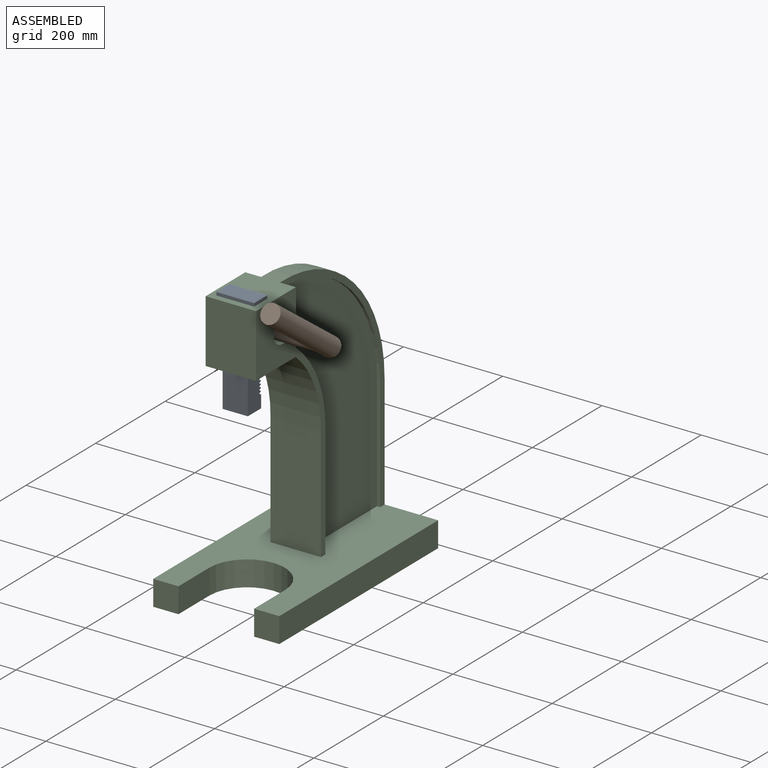
[diagram: assembled view]
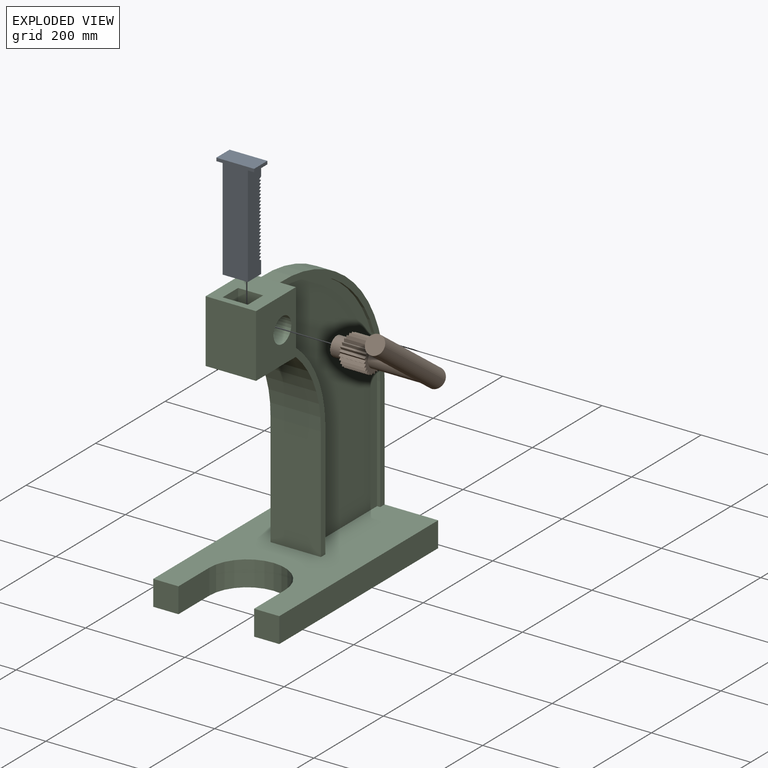
[diagram: exploded view]
GUIDED TOUR — MATED ASSEMBLY (Onshape document 791e0c920d4a2f3be3156192, AutoMate assembly 791e0c920d4a2f3be3156192_3b25f23ee723998e74377184_8163ef5310a8ae61655949e4_default)

This assembly has 3 components, labeled P0..P2 below (a component is one placed occurrence of a part; the same part can appear more than once), held together by 2 mates. A mate is a constraint between two components; its type names the relative motion it leaves free:
  REVOLUTE — leaves rotation about the listed axis free (a hinge),
  SLIDER — leaves translation along the listed axis free.
Axis/direction vectors are unit vectors and 'through' points are millimeter coordinates, both in the assembly's world frame.

MATES
  1. REVOLUTE "Revolute 1": P1 <-> P2, axis (-1.000, 0.000, 0.000) through (-264.10, 27.50, 613.15) mm
  2. SLIDER "Slider 1": P2 <-> P0, axis (0.000, 0.000, 1.000) through (-187.90, -36.00, 676.65) mm

ASSEMBLY ORDER
  1. P2 — the base component [order heuristic]
  2. P0 [order heuristic]
  3. P1 [order heuristic]
Order-tag legend:
  [order heuristic] — this assembly is geometrically interlocked (no collision-free removal order exists), so components are listed in mate-graph order; insertion feasibility is not verified.

Of the 3 components, 1 carries the full construction recipe — the FeatureScript program that regenerates the part's solid from scratch; the rest are supplied as boundary geometry only.
Each toured component is shown spotlighted twice — in the assembled view, then in the exploded view, where a leader line traces a displaced component back to its assembled socket (saturated green if recipe-attached, orange if geometry-only; every other component desaturated gray) — followed by its recipe or geometry summary and the mates that hold it.
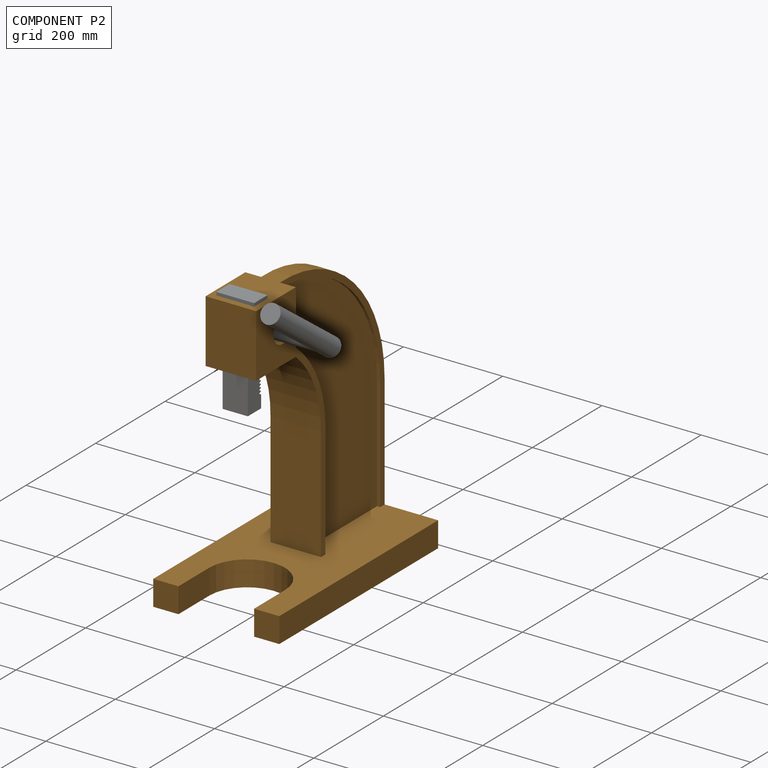
[diagram: component P2 — assembled]
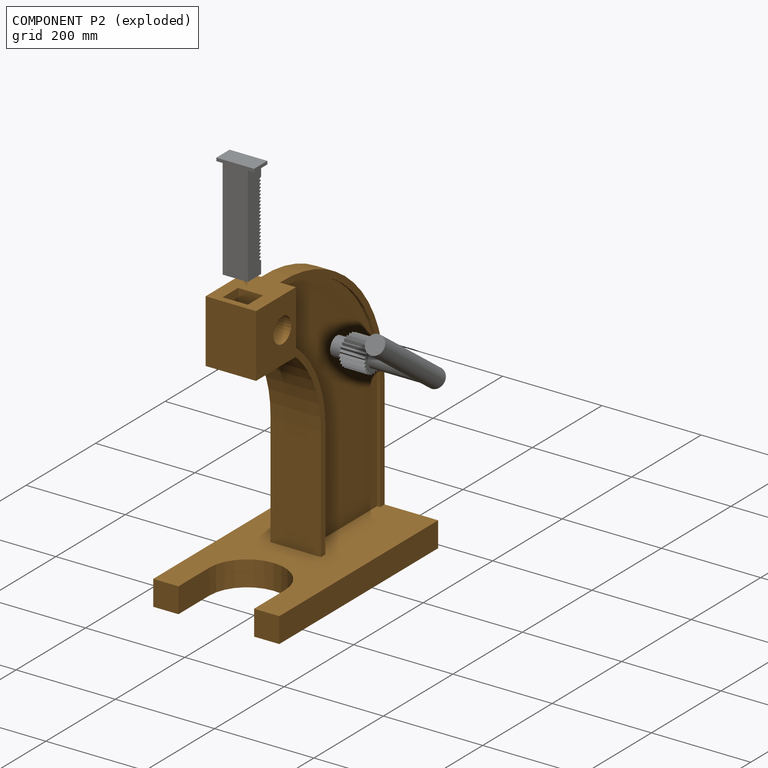
[diagram: component P2 — exploded]
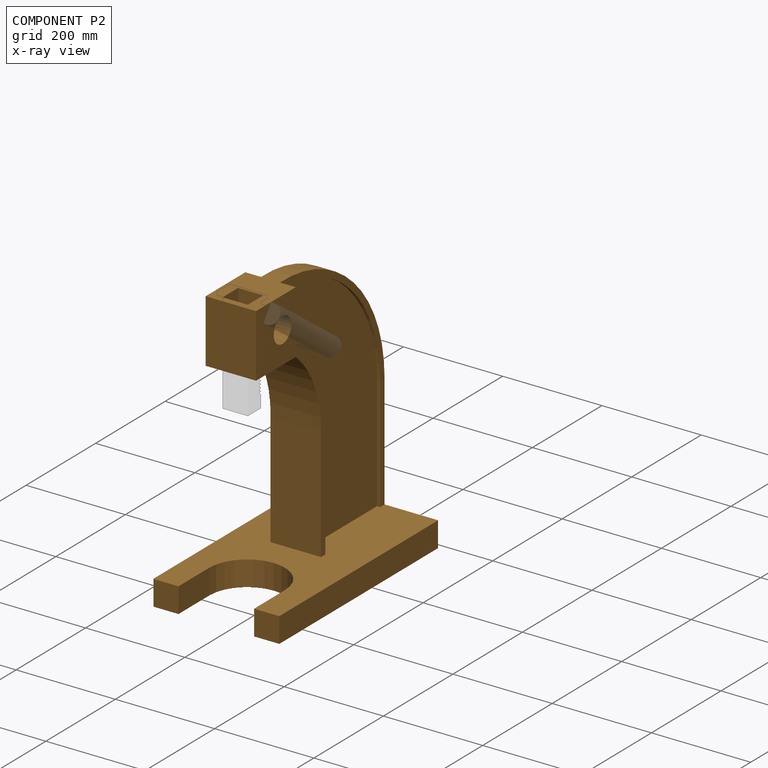
[diagram: component P2 — x-ray view]
COMPONENT P2 — geometry summary (no construction recipe available for this part):
  bounding box: 570.1 x 457.2 x 254.0 mm
  B-rep topology: 1 solid, 38 faces, 218 edges
  volume: 9136530 mm^3 (14% of its bounding box)
  symmetry: mirror-symmetric across its x mid-plane
Held by: REVOLUTE mate "Revolute 1" to P1; SLIDER mate "Slider 1" to P0.
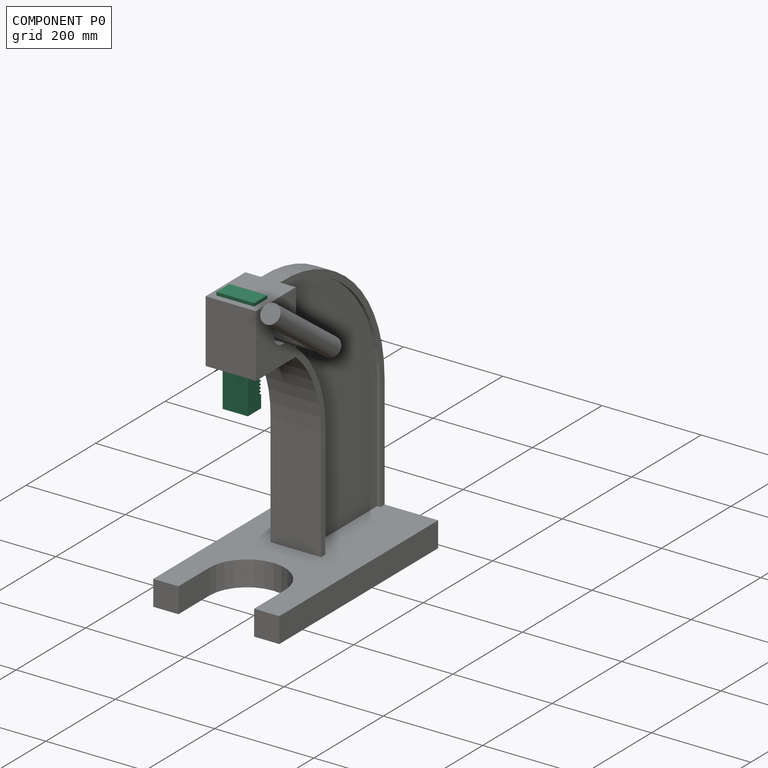
[diagram: component P0 — assembled]
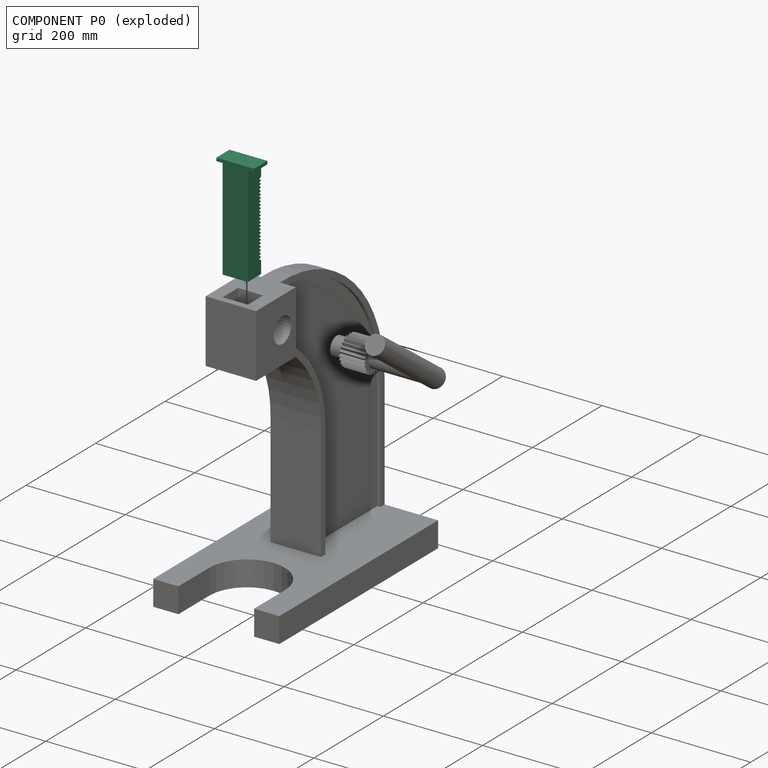
[diagram: component P0 — exploded]
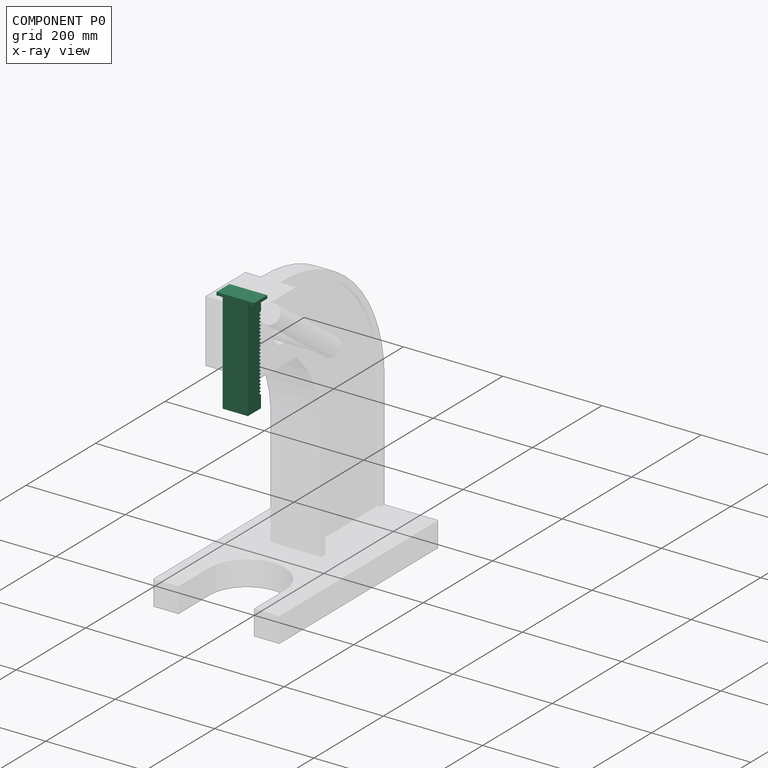
[diagram: component P0 — x-ray view]
COMPONENT P0 — recipe-attached (CADFS 00426102, mesh-verified: the recipe's output STEP matches this component's geometry to below the mesh-comparison resolution (tessellation chordal tolerance ~0.339 mm)).
Held by: SLIDER mate "Slider 1" to P2.
Construction recipe (FeatureScript — the CAD program that rebuilds this solid; sketch coordinates are in the units given by the * unit suffixes, e.g. mm):

FeatureScript 1511;
import(path : "onshape/std/geometry.fs", version : "1511.0");
import(path : "onshape/std/common.fs", version : "1511.0");
const mm = millimeter;
const VERTEX = EntityType.VERTEX;
const EDGE = EntityType.EDGE;
const FACE = EntityType.FACE;
const BODY = EntityType.BODY;
function v(x, y){return vector(x, y);}
function OD(order){return orderDisambiguation(order);}
function OSD(set){return originalSetDisambiguation(set);}
function TD(topology){return topologyDisambiguation(topology);}
function TDD(query){return trueDependencyDisambiguation(query);}
function sQuery(a, b, c) {return sketchEntityQuery(a, b, c);}

annotation { "Feature Type Name" : "Feature", "Feature Type Description" : "" }
export const myFeature = defineFeature(function(context is Context, id is Id, definition is map)
    precondition{}
    {
        {
            var Q0;
            Q0=qCreatedBy(makeId("Front.planeOp"),FACE);
            var sketch = newSketch(context, id + "F0", { "sketchPlane" : qUnion([Q0])});
            skLineSegment(sketch, "E0", {"start": v(-25.4, 203.2) * mm, "end": v(25.4, 203.2) * mm});
            skLineSegment(sketch, "E1", {"start": v(25.4, 203.2) * mm, "end": v(25.4, 0) * mm});
            skLineSegment(sketch, "E2", {"start": v(25.4, 0) * mm, "end": v(-25.4, 0) * mm});
            skLineSegment(sketch, "E3", {"start": v(-25.4, 0) * mm, "end": v(-25.4, 203.2) * mm});
            skPoint(sketch, "E4", {"position": v(0, 203.2) * mm});
            skLineSegment(sketch, "E5", {"start": v(-38.1, 209.55) * mm, "end": v(-38.1, 203.2) * mm});
            skLineSegment(sketch, "E6", {"start": v(-38.1, 203.2) * mm, "end": v(38.1, 203.2) * mm});
            skLineSegment(sketch, "E7", {"start": v(38.1, 203.2) * mm, "end": v(38.1, 209.55) * mm});
            skLineSegment(sketch, "E8", {"start": v(38.1, 209.55) * mm, "end": v(-38.1, 209.55) * mm});
            skSolve(sketch);
        }
        {
            var Q0;
            {var subQ4=sQuery(id+"F0.wireOp",EDGE,"E5");Q0=makeQuery(id+"F0.imprint","IMPRINT",FACE,{"disambiguationData":[TD([[makeQuery(id+"F0.imprint","IMPRINT",EDGE,{"derivedFrom":subQ4}),1.0]])]});}
            var Q1;
            {var subQ0=sQuery(id+"F0.wireOp",EDGE,"E1");Q1=makeQuery(id+"F0.imprint","IMPRINT",FACE,{"disambiguationData":[TD([[makeQuery(id+"F0.imprint","IMPRINT",EDGE,{"derivedFrom":subQ0}),-1.0]])]});}
            extrude(context, id + "F1", {"entities" : qUnion([Q0, Q1]), "endBound" : BoundingType.SYMMETRIC, "depth" : 38.1 * mm});
        }
        {
            var Q0;
            Q0=makeQuery(id+"F1.opExtrude","SWEPT_FACE",FACE,{"disambiguationData":[OSD([sQuery(id+"F0.wireOp",EDGE,"E1")])]});
            var sketch = newSketch(context, id + "F2", { "sketchPlane" : qUnion([Q0])});
            skLineSegment(sketch, "E9", {"start": v(19.05, 203.2) * mm, "end": v(19.05, 177.8) * mm, "construction": true});
            skLineSegment(sketch, "E10", {"start": v(19.05, 0) * mm, "end": v(19.05, 25.4) * mm, "construction": true});
            skLineSegment(sketch, "E11", {"start": v(19.05, 25.4) * mm, "end": v(-19.05, 25.4) * mm, "construction": true});
            skLineSegment(sketch, "E12", {"start": v(19.05, 177.8) * mm, "end": v(-19.05, 177.8) * mm, "construction": true});
            skLineSegment(sketch, "E13", {"start": v(19.05, 177.8) * mm, "end": v(13.55, 174.63) * mm});
            skLineSegment(sketch, "E14", {"start": v(13.55, 174.63) * mm, "end": v(19.05, 171.45) * mm});
            skLineSegment(sketch, "E15", {"start": v(19.05, 171.45) * mm, "end": v(19.05, 177.8) * mm});
            skLineSegment(sketch, "E16.0.1.0", {"start": v(13.55, 168.28) * mm, "end": v(19.05, 165.1) * mm});
            skLineSegment(sketch, "E16.0.1.1", {"start": v(19.05, 171.45) * mm, "end": v(13.55, 168.28) * mm});
            skLineSegment(sketch, "E16.0.1.2", {"start": v(19.05, 165.1) * mm, "end": v(19.05, 171.45) * mm});
            skLineSegment(sketch, "E16.0.2.0", {"start": v(13.55, 161.93) * mm, "end": v(19.05, 158.75) * mm});
            skLineSegment(sketch, "E16.0.2.1", {"start": v(19.05, 165.1) * mm, "end": v(13.55, 161.93) * mm});
            skLineSegment(sketch, "E16.0.2.2", {"start": v(19.05, 158.75) * mm, "end": v(19.05, 165.1) * mm});
            skLineSegment(sketch, "E16.0.3.0", {"start": v(13.55, 155.58) * mm, "end": v(19.05, 152.4) * mm});
            skLineSegment(sketch, "E16.0.3.1", {"start": v(19.05, 158.75) * mm, "end": v(13.55, 155.58) * mm});
            skLineSegment(sketch, "E16.0.3.2", {"start": v(19.05, 152.4) * mm, "end": v(19.05, 158.75) * mm});
            skLineSegment(sketch, "E16.0.4.0", {"start": v(13.55, 149.23) * mm, "end": v(19.05, 146.05) * mm});
            skLineSegment(sketch, "E16.0.4.1", {"start": v(19.05, 152.4) * mm, "end": v(13.55, 149.23) * mm});
            skLineSegment(sketch, "E16.0.4.2", {"start": v(19.05, 146.05) * mm, "end": v(19.05, 152.4) * mm});
            skLineSegment(sketch, "E16.0.5.0", {"start": v(13.55, 142.88) * mm, "end": v(19.05, 139.7) * mm});
            skLineSegment(sketch, "E16.0.5.1", {"start": v(19.05, 146.05) * mm, "end": v(13.55, 142.88) * mm});
            skLineSegment(sketch, "E16.0.5.2", {"start": v(19.05, 139.7) * mm, "end": v(19.05, 146.05) * mm});
            skLineSegment(sketch, "E16.0.6.0", {"start": v(13.55, 136.53) * mm, "end": v(19.05, 133.35) * mm});
            skLineSegment(sketch, "E16.0.6.1", {"start": v(19.05, 139.7) * mm, "end": v(13.55, 136.53) * mm});
            skLineSegment(sketch, "E16.0.6.2", {"start": v(19.05, 133.35) * mm, "end": v(19.05, 139.7) * mm});
            skLineSegment(sketch, "E16.0.7.0", {"start": v(13.55, 130.18) * mm, "end": v(19.05, 127) * mm});
            skLineSegment(sketch, "E16.0.7.1", {"start": v(19.05, 133.35) * mm, "end": v(13.55, 130.18) * mm});
            skLineSegment(sketch, "E16.0.7.2", {"start": v(19.05, 127) * mm, "end": v(19.05, 133.35) * mm});
            skLineSegment(sketch, "E16.0.8.0", {"start": v(13.55, 123.83) * mm, "end": v(19.05, 120.65) * mm});
            skLineSegment(sketch, "E16.0.8.1", {"start": v(19.05, 127) * mm, "end": v(13.55, 123.83) * mm});
            skLineSegment(sketch, "E16.0.8.2", {"start": v(19.05, 120.65) * mm, "end": v(19.05, 127) * mm});
            skLineSegment(sketch, "E16.0.9.0", {"start": v(13.55, 117.48) * mm, "end": v(19.05, 114.3) * mm});
            skLineSegment(sketch, "E16.0.9.1", {"start": v(19.05, 120.65) * mm, "end": v(13.55, 117.48) * mm});
            skLineSegment(sketch, "E16.0.9.2", {"start": v(19.05, 114.3) * mm, "end": v(19.05, 120.65) * mm});
            skLineSegment(sketch, "E16.0.10.0", {"start": v(13.55, 111.13) * mm, "end": v(19.05, 107.95) * mm});
            skLineSegment(sketch, "E16.0.10.1", {"start": v(19.05, 114.3) * mm, "end": v(13.55, 111.13) * mm});
            skLineSegment(sketch, "E16.0.10.2", {"start": v(19.05, 107.95) * mm, "end": v(19.05, 114.3) * mm});
            skLineSegment(sketch, "E16.0.11.0", {"start": v(13.55, 104.78) * mm, "end": v(19.05, 101.6) * mm});
            skLineSegment(sketch, "E16.0.11.1", {"start": v(19.05, 107.95) * mm, "end": v(13.55, 104.78) * mm});
            skLineSegment(sketch, "E16.0.11.2", {"start": v(19.05, 101.6) * mm, "end": v(19.05, 107.95) * mm});
            skLineSegment(sketch, "E16.0.12.0", {"start": v(13.55, 98.43) * mm, "end": v(19.05, 95.25) * mm});
            skLineSegment(sketch, "E16.0.12.1", {"start": v(19.05, 101.6) * mm, "end": v(13.55, 98.43) * mm});
            skLineSegment(sketch, "E16.0.12.2", {"start": v(19.05, 95.25) * mm, "end": v(19.05, 101.6) * mm});
            skLineSegment(sketch, "E16.0.13.0", {"start": v(13.55, 92.08) * mm, "end": v(19.05, 88.9) * mm});
            skLineSegment(sketch, "E16.0.13.1", {"start": v(19.05, 95.25) * mm, "end": v(13.55, 92.08) * mm});
            skLineSegment(sketch, "E16.0.13.2", {"start": v(19.05, 88.9) * mm, "end": v(19.05, 95.25) * mm});
            skLineSegment(sketch, "E16.0.14.0", {"start": v(13.55, 85.73) * mm, "end": v(19.05, 82.55) * mm});
            skLineSegment(sketch, "E16.0.14.1", {"start": v(19.05, 88.9) * mm, "end": v(13.55, 85.73) * mm});
            skLineSegment(sketch, "E16.0.14.2", {"start": v(19.05, 82.55) * mm, "end": v(19.05, 88.9) * mm});
            skLineSegment(sketch, "E16.0.15.0", {"start": v(13.55, 79.38) * mm, "end": v(19.05, 76.2) * mm});
            skLineSegment(sketch, "E16.0.15.1", {"start": v(19.05, 82.55) * mm, "end": v(13.55, 79.38) * mm});
            skLineSegment(sketch, "E16.0.15.2", {"start": v(19.05, 76.2) * mm, "end": v(19.05, 82.55) * mm});
            skLineSegment(sketch, "E16.0.16.0", {"start": v(13.55, 73.03) * mm, "end": v(19.05, 69.85) * mm});
            skLineSegment(sketch, "E16.0.16.1", {"start": v(19.05, 76.2) * mm, "end": v(13.55, 73.03) * mm});
            skLineSegment(sketch, "E16.0.16.2", {"start": v(19.05, 69.85) * mm, "end": v(19.05, 76.2) * mm});
            skLineSegment(sketch, "E16.0.17.0", {"start": v(13.55, 66.68) * mm, "end": v(19.05, 63.5) * mm});
            skLineSegment(sketch, "E16.0.17.1", {"start": v(19.05, 69.85) * mm, "end": v(13.55, 66.68) * mm});
            skLineSegment(sketch, "E16.0.17.2", {"start": v(19.05, 63.5) * mm, "end": v(19.05, 69.85) * mm});
            skLineSegment(sketch, "E16.0.18.0", {"start": v(13.55, 60.33) * mm, "end": v(19.05, 57.15) * mm});
            skLineSegment(sketch, "E16.0.18.1", {"start": v(19.05, 63.5) * mm, "end": v(13.55, 60.33) * mm});
            skLineSegment(sketch, "E16.0.18.2", {"start": v(19.05, 57.15) * mm, "end": v(19.05, 63.5) * mm});
            skLineSegment(sketch, "E16.0.19.0", {"start": v(13.55, 53.98) * mm, "end": v(19.05, 50.8) * mm});
            skLineSegment(sketch, "E16.0.19.1", {"start": v(19.05, 57.15) * mm, "end": v(13.55, 53.98) * mm});
            skLineSegment(sketch, "E16.0.19.2", {"start": v(19.05, 50.8) * mm, "end": v(19.05, 57.15) * mm});
            skLineSegment(sketch, "E16.0.20.0", {"start": v(13.55, 47.63) * mm, "end": v(19.05, 44.45) * mm});
            skLineSegment(sketch, "E16.0.20.1", {"start": v(19.05, 50.8) * mm, "end": v(13.55, 47.63) * mm});
            skLineSegment(sketch, "E16.0.20.2", {"start": v(19.05, 44.45) * mm, "end": v(19.05, 50.8) * mm});
            skLineSegment(sketch, "E16.0.21.0", {"start": v(13.55, 41.28) * mm, "end": v(19.05, 38.1) * mm});
            skLineSegment(sketch, "E16.0.21.1", {"start": v(19.05, 44.45) * mm, "end": v(13.55, 41.28) * mm});
            skLineSegment(sketch, "E16.0.21.2", {"start": v(19.05, 38.1) * mm, "end": v(19.05, 44.45) * mm});
            skLineSegment(sketch, "E16.0.22.0", {"start": v(13.55, 34.93) * mm, "end": v(19.05, 31.75) * mm});
            skLineSegment(sketch, "E16.0.22.1", {"start": v(19.05, 38.1) * mm, "end": v(13.55, 34.93) * mm});
            skLineSegment(sketch, "E16.0.22.2", {"start": v(19.05, 31.75) * mm, "end": v(19.05, 38.1) * mm});
            skLineSegment(sketch, "E16.0.23.0", {"start": v(13.55, 28.58) * mm, "end": v(19.05, 25.4) * mm});
            skLineSegment(sketch, "E16.0.23.1", {"start": v(19.05, 31.75) * mm, "end": v(13.55, 28.58) * mm});
            skLineSegment(sketch, "E16.0.23.2", {"start": v(19.05, 25.4) * mm, "end": v(19.05, 31.75) * mm});
            skLineSegment(sketch, "E16.direction1", {"start": v(13.55, 174.63) * mm, "end": v(38.95, 174.63) * mm, "construction": true});
            skLineSegment(sketch, "E16.direction2", {"start": v(13.55, 174.63) * mm, "end": v(13.55, 168.28) * mm, "construction": true});
            skSolve(sketch);
        }
        {
            var Q0;
            Q0=makeQuery(id+"F2.imprint","IMPRINT",FACE,{"disambiguationData":[TD([[makeQuery(id+"F2.imprint","IMPRINT",EDGE,{"derivedFrom":sQuery(id+"F2.wireOp",EDGE,"E16.0.17.0")}),1.0]])]});
            var Q1;
            Q1=makeQuery(id+"F2.imprint","IMPRINT",FACE,{"disambiguationData":[TD([[makeQuery(id+"F2.imprint","IMPRINT",EDGE,{"derivedFrom":sQuery(id+"F2.wireOp",EDGE,"E16.0.23.0")}),1.0]])]});
            var Q2;
            Q2=makeQuery(id+"F2.imprint","IMPRINT",FACE,{"disambiguationData":[TD([[makeQuery(id+"F2.imprint","IMPRINT",EDGE,{"derivedFrom":sQuery(id+"F2.wireOp",EDGE,"E16.0.18.0")}),1.0]])]});
            var Q3;
            Q3=makeQuery(id+"F2.imprint","IMPRINT",FACE,{"disambiguationData":[TD([[makeQuery(id+"F2.imprint","IMPRINT",EDGE,{"derivedFrom":sQuery(id+"F2.wireOp",EDGE,"E16.0.15.0")}),1.0]])]});
            var Q4;
            Q4=makeQuery(id+"F2.imprint","IMPRINT",FACE,{"disambiguationData":[TD([[makeQuery(id+"F2.imprint","IMPRINT",EDGE,{"derivedFrom":sQuery(id+"F2.wireOp",EDGE,"E16.0.13.0")}),1.0]])]});
            var Q5;
            Q5=makeQuery(id+"F2.imprint","IMPRINT",FACE,{"disambiguationData":[TD([[makeQuery(id+"F2.imprint","IMPRINT",EDGE,{"derivedFrom":sQuery(id+"F2.wireOp",EDGE,"E16.0.14.0")}),1.0]])]});
            var Q6;
            Q6=makeQuery(id+"F2.imprint","IMPRINT",FACE,{"disambiguationData":[TD([[makeQuery(id+"F2.imprint","IMPRINT",EDGE,{"derivedFrom":sQuery(id+"F2.wireOp",EDGE,"E13")}),1.0]])]});
            var Q7;
            Q7=makeQuery(id+"F2.imprint","IMPRINT",FACE,{"disambiguationData":[TD([[makeQuery(id+"F2.imprint","IMPRINT",EDGE,{"derivedFrom":sQuery(id+"F2.wireOp",EDGE,"E16.0.1.0")}),1.0]])]});
            var Q8;
            Q8=makeQuery(id+"F2.imprint","IMPRINT",FACE,{"disambiguationData":[TD([[makeQuery(id+"F2.imprint","IMPRINT",EDGE,{"derivedFrom":sQuery(id+"F2.wireOp",EDGE,"E16.0.2.0")}),1.0]])]});
            var Q9;
            Q9=makeQuery(id+"F2.imprint","IMPRINT",FACE,{"disambiguationData":[TD([[makeQuery(id+"F2.imprint","IMPRINT",EDGE,{"derivedFrom":sQuery(id+"F2.wireOp",EDGE,"E16.0.3.0")}),1.0]])]});
            var Q10;
            Q10=makeQuery(id+"F2.imprint","IMPRINT",FACE,{"disambiguationData":[TD([[makeQuery(id+"F2.imprint","IMPRINT",EDGE,{"derivedFrom":sQuery(id+"F2.wireOp",EDGE,"E16.0.4.0")}),1.0]])]});
            var Q11;
            Q11=makeQuery(id+"F2.imprint","IMPRINT",FACE,{"disambiguationData":[TD([[makeQuery(id+"F2.imprint","IMPRINT",EDGE,{"derivedFrom":sQuery(id+"F2.wireOp",EDGE,"E16.0.5.0")}),1.0]])]});
            var Q12;
            Q12=makeQuery(id+"F2.imprint","IMPRINT",FACE,{"disambiguationData":[TD([[makeQuery(id+"F2.imprint","IMPRINT",EDGE,{"derivedFrom":sQuery(id+"F2.wireOp",EDGE,"E16.0.6.0")}),1.0]])]});
            var Q13;
            Q13=makeQuery(id+"F2.imprint","IMPRINT",FACE,{"disambiguationData":[TD([[makeQuery(id+"F2.imprint","IMPRINT",EDGE,{"derivedFrom":sQuery(id+"F2.wireOp",EDGE,"E16.0.7.0")}),1.0]])]});
            var Q14;
            Q14=makeQuery(id+"F2.imprint","IMPRINT",FACE,{"disambiguationData":[TD([[makeQuery(id+"F2.imprint","IMPRINT",EDGE,{"derivedFrom":sQuery(id+"F2.wireOp",EDGE,"E16.0.9.0")}),1.0]])]});
            var Q15;
            Q15=makeQuery(id+"F2.imprint","IMPRINT",FACE,{"disambiguationData":[TD([[makeQuery(id+"F2.imprint","IMPRINT",EDGE,{"derivedFrom":sQuery(id+"F2.wireOp",EDGE,"E16.0.8.0")}),1.0]])]});
            var Q16;
            Q16=makeQuery(id+"F2.imprint","IMPRINT",FACE,{"disambiguationData":[TD([[makeQuery(id+"F2.imprint","IMPRINT",EDGE,{"derivedFrom":sQuery(id+"F2.wireOp",EDGE,"E16.0.10.0")}),1.0]])]});
            var Q17;
            Q17=makeQuery(id+"F2.imprint","IMPRINT",FACE,{"disambiguationData":[TD([[makeQuery(id+"F2.imprint","IMPRINT",EDGE,{"derivedFrom":sQuery(id+"F2.wireOp",EDGE,"E16.0.11.0")}),1.0]])]});
            var Q18;
            Q18=makeQuery(id+"F2.imprint","IMPRINT",FACE,{"disambiguationData":[TD([[makeQuery(id+"F2.imprint","IMPRINT",EDGE,{"derivedFrom":sQuery(id+"F2.wireOp",EDGE,"E16.0.12.0")}),1.0]])]});
            var Q19;
            Q19=makeQuery(id+"F2.imprint","IMPRINT",FACE,{"disambiguationData":[TD([[makeQuery(id+"F2.imprint","IMPRINT",EDGE,{"derivedFrom":sQuery(id+"F2.wireOp",EDGE,"E16.0.22.0")}),1.0]])]});
            var Q20;
            Q20=makeQuery(id+"F2.imprint","IMPRINT",FACE,{"disambiguationData":[TD([[makeQuery(id+"F2.imprint","IMPRINT",EDGE,{"derivedFrom":sQuery(id+"F2.wireOp",EDGE,"E16.0.20.0")}),1.0]])]});
            var Q21;
            Q21=makeQuery(id+"F2.imprint","IMPRINT",FACE,{"disambiguationData":[TD([[makeQuery(id+"F2.imprint","IMPRINT",EDGE,{"derivedFrom":sQuery(id+"F2.wireOp",EDGE,"E16.0.16.0")}),1.0]])]});
            var Q22;
            Q22=makeQuery(id+"F2.imprint","IMPRINT",FACE,{"disambiguationData":[TD([[makeQuery(id+"F2.imprint","IMPRINT",EDGE,{"derivedFrom":sQuery(id+"F2.wireOp",EDGE,"E16.0.19.0")}),1.0]])]});
            var Q23;
            Q23=makeQuery(id+"F2.imprint","IMPRINT",FACE,{"disambiguationData":[TD([[makeQuery(id+"F2.imprint","IMPRINT",EDGE,{"derivedFrom":sQuery(id+"F2.wireOp",EDGE,"E16.0.21.0")}),1.0]])]});
            var Q24;
            Q24=sQuery(id+"F2.wireOp",EDGE,"E16.0.11.2");
            var Q25;
            Q25=sQuery(id+"F2.wireOp",EDGE,"E16.0.9.2");
            var Q26;
            Q26=sQuery(id+"F2.wireOp",EDGE,"E16.0.22.2");
            var Q27;
            Q27=sQuery(id+"F2.wireOp",EDGE,"E16.0.6.2");
            var Q28;
            Q28=sQuery(id+"F2.wireOp",EDGE,"E16.0.14.2");
            var Q29;
            Q29=sQuery(id+"F2.wireOp",EDGE,"E16.0.8.2");
            var Q30;
            Q30=sQuery(id+"F2.wireOp",EDGE,"E16.0.3.2");
            var Q31;
            Q31=sQuery(id+"F2.wireOp",EDGE,"E16.0.5.2");
            var Q32;
            Q32=sQuery(id+"F2.wireOp",EDGE,"E15");
            var Q33;
            Q33=sQuery(id+"F2.wireOp",EDGE,"E16.0.1.2");
            var Q34;
            Q34=sQuery(id+"F2.wireOp",EDGE,"E16.0.17.2");
            var Q35;
            Q35=sQuery(id+"F2.wireOp",EDGE,"E16.0.2.2");
            var Q36;
            Q36=sQuery(id+"F2.wireOp",EDGE,"E16.0.21.2");
            var Q37;
            Q37=sQuery(id+"F2.wireOp",EDGE,"E16.0.4.2");
            var Q38;
            Q38=sQuery(id+"F2.wireOp",EDGE,"E16.0.19.2");
            var Q39;
            Q39=sQuery(id+"F2.wireOp",EDGE,"E16.0.16.2");
            var Q40;
            Q40=sQuery(id+"F2.wireOp",EDGE,"E16.0.20.2");
            var Q41;
            Q41=sQuery(id+"F2.wireOp",EDGE,"E16.0.12.2");
            var Q42;
            Q42=sQuery(id+"F2.wireOp",EDGE,"E16.0.15.2");
            var Q43;
            Q43=sQuery(id+"F2.wireOp",EDGE,"E16.0.18.2");
            var Q44;
            Q44=sQuery(id+"F2.wireOp",EDGE,"E16.0.13.2");
            var Q45;
            Q45=sQuery(id+"F2.wireOp",EDGE,"E16.0.10.2");
            var Q46;
            Q46=sQuery(id+"F2.wireOp",EDGE,"E16.0.7.2");
            var Q47;
            Q47=sQuery(id+"F2.wireOp",EDGE,"E16.0.23.2");
            var Q48;
            Q48=sQuery(id+"F2.wireOp",EDGE,"E16.0.9.1");
            var Q49;
            Q49=sQuery(id+"F2.wireOp",EDGE,"E16.0.11.0");
            var Q50;
            Q50=sQuery(id+"F2.wireOp",EDGE,"E16.0.17.0");
            var Q51;
            Q51=sQuery(id+"F2.wireOp",EDGE,"E16.0.6.1");
            var Q52;
            Q52=sQuery(id+"F2.wireOp",EDGE,"E16.0.4.0");
            var Q53;
            Q53=sQuery(id+"F2.wireOp",EDGE,"E16.0.22.1");
            var Q54;
            Q54=sQuery(id+"F2.wireOp",EDGE,"E16.0.4.1");
            var Q55;
            Q55=sQuery(id+"F2.wireOp",EDGE,"E16.0.12.0");
            var Q56;
            Q56=sQuery(id+"F2.wireOp",EDGE,"E16.0.17.1");
            var Q57;
            Q57=sQuery(id+"F2.wireOp",EDGE,"E16.0.20.0");
            var Q58;
            Q58=sQuery(id+"F2.wireOp",EDGE,"E16.0.20.1");
            var Q59;
            Q59=sQuery(id+"F2.wireOp",EDGE,"E16.0.15.0");
            var Q60;
            Q60=sQuery(id+"F2.wireOp",EDGE,"E16.0.3.0");
            var Q61;
            Q61=sQuery(id+"F2.wireOp",EDGE,"E16.0.3.1");
            var Q62;
            Q62=sQuery(id+"F2.wireOp",EDGE,"E16.0.2.0");
            var Q63;
            Q63=sQuery(id+"F2.wireOp",EDGE,"E16.0.2.1");
            var Q64;
            Q64=sQuery(id+"F2.wireOp",EDGE,"E16.0.23.0");
            var Q65;
            Q65=sQuery(id+"F2.wireOp",EDGE,"E16.0.12.1");
            var Q66;
            Q66=sQuery(id+"F2.wireOp",EDGE,"E16.0.7.0");
            var Q67;
            Q67=sQuery(id+"F2.wireOp",EDGE,"E16.0.19.1");
            var Q68;
            Q68=sQuery(id+"F2.wireOp",EDGE,"E16.0.14.0");
            var Q69;
            Q69=sQuery(id+"F2.wireOp",EDGE,"E16.0.10.0");
            var Q70;
            Q70=sQuery(id+"F2.wireOp",EDGE,"E16.0.16.1");
            var Q71;
            Q71=sQuery(id+"F2.wireOp",EDGE,"E16.0.9.0");
            var Q72;
            Q72=sQuery(id+"F2.wireOp",EDGE,"E16.0.11.1");
            var Q73;
            Q73=sQuery(id+"F2.wireOp",EDGE,"E16.0.6.0");
            var Q74;
            Q74=sQuery(id+"F2.wireOp",EDGE,"E16.0.22.0");
            var Q75;
            Q75=sQuery(id+"F2.wireOp",EDGE,"E16.0.14.1");
            var Q76;
            Q76=sQuery(id+"F2.wireOp",EDGE,"E16.0.15.1");
            var Q77;
            Q77=sQuery(id+"F2.wireOp",EDGE,"E16.0.7.1");
            var Q78;
            Q78=sQuery(id+"F2.wireOp",EDGE,"E16.0.10.1");
            var Q79;
            Q79=sQuery(id+"F2.wireOp",EDGE,"E16.0.21.0");
            var Q80;
            Q80=sQuery(id+"F2.wireOp",EDGE,"E16.0.18.0");
            var Q81;
            Q81=sQuery(id+"F2.wireOp",EDGE,"E16.0.5.0");
            var Q82;
            Q82=sQuery(id+"F2.wireOp",EDGE,"E16.0.23.1");
            var Q83;
            Q83=sQuery(id+"F2.wireOp",EDGE,"E16.0.8.0");
            var Q84;
            Q84=sQuery(id+"F2.wireOp",EDGE,"E16.0.13.1");
            var Q85;
            Q85=sQuery(id+"F2.wireOp",EDGE,"E16.0.16.0");
            var Q86;
            Q86=sQuery(id+"F2.wireOp",EDGE,"E16.0.21.1");
            var Q87;
            Q87=sQuery(id+"F2.wireOp",EDGE,"E16.0.19.0");
            var Q88;
            Q88=sQuery(id+"F2.wireOp",EDGE,"E16.0.5.1");
            var Q89;
            Q89=sQuery(id+"F2.wireOp",EDGE,"E16.0.8.1");
            var Q90;
            Q90=sQuery(id+"F2.wireOp",EDGE,"E16.0.13.0");
            var Q91;
            Q91=sQuery(id+"F2.wireOp",EDGE,"E16.0.18.1");
            var Q92;
            Q92=sQuery(id+"F2.wireOp",EDGE,"E16.0.1.0");
            var Q93;
            Q93=sQuery(id+"F2.wireOp",EDGE,"E16.0.1.1");
            var Q94;
            Q94=sQuery(id+"F2.wireOp",EDGE,"E13");
            var Q95;
            Q95=sQuery(id+"F2.wireOp",EDGE,"E14");
            extrude(context, id + "F3", {"entities" : qUnion([Q0, Q1, Q2, Q3, Q4, Q5, Q6, Q7, Q8, Q9, Q10, Q11, Q12, Q13, Q14, Q15, Q16, Q17, Q18, Q19, Q20, Q21, Q22, Q23]), "operationType" : NewBodyOperationType.REMOVE, "surfaceEntities" : qUnion([Q24, Q25, Q26, Q27, Q28, Q29, Q30, Q31, Q32, Q33, Q34, Q35, Q36, Q37, Q38, Q39, Q40, Q41, Q42, Q43, Q44, Q45, Q46, Q47, Q48, Q49, Q50, Q51, Q52, Q53, Q54, Q55, Q56, Q57, Q58, Q59, Q60, Q61, Q62, Q63, Q64, Q65, Q66, Q67, Q68, Q69, Q70, Q71, Q72, Q73, Q74, Q75, Q76, Q77, Q78, Q79, Q80, Q81, Q82, Q83, Q84, Q85, Q86, Q87, Q88, Q89, Q90, Q91, Q92, Q93, Q94, Q95]), "oppositeDirection" : true, "depth" : 50.8 * mm});
        }
    });
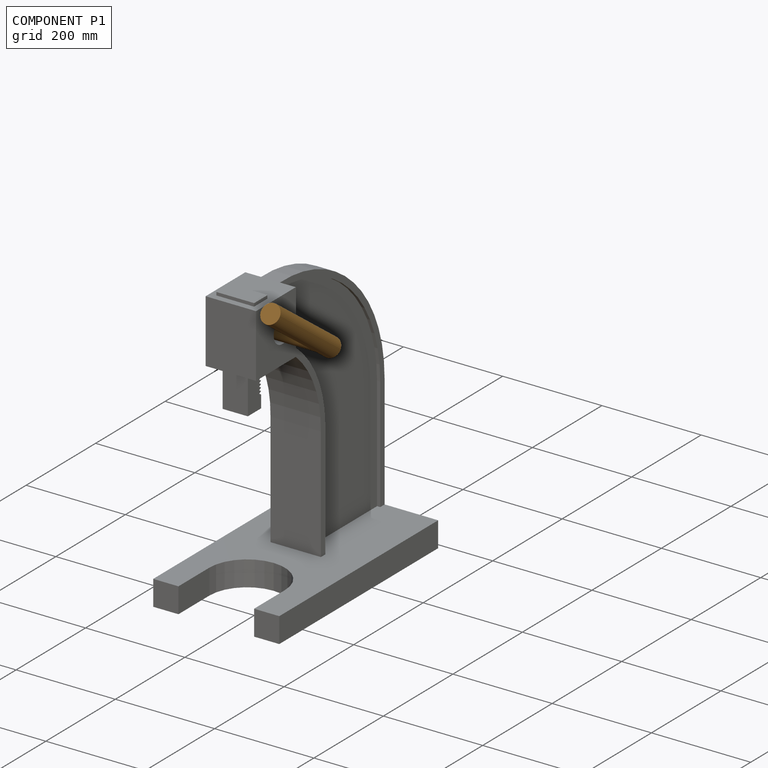
[diagram: component P1 — assembled]
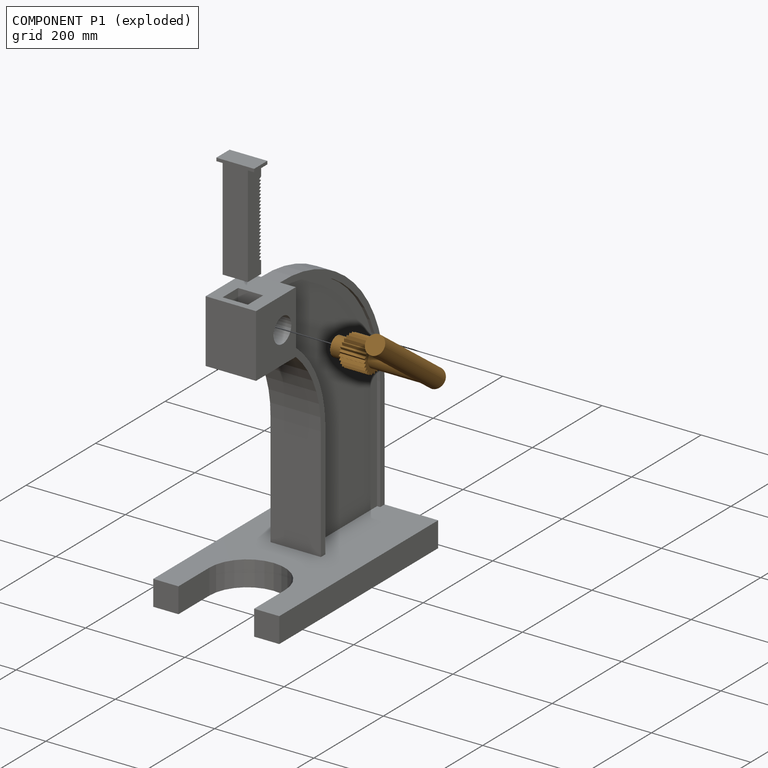
[diagram: component P1 — exploded]
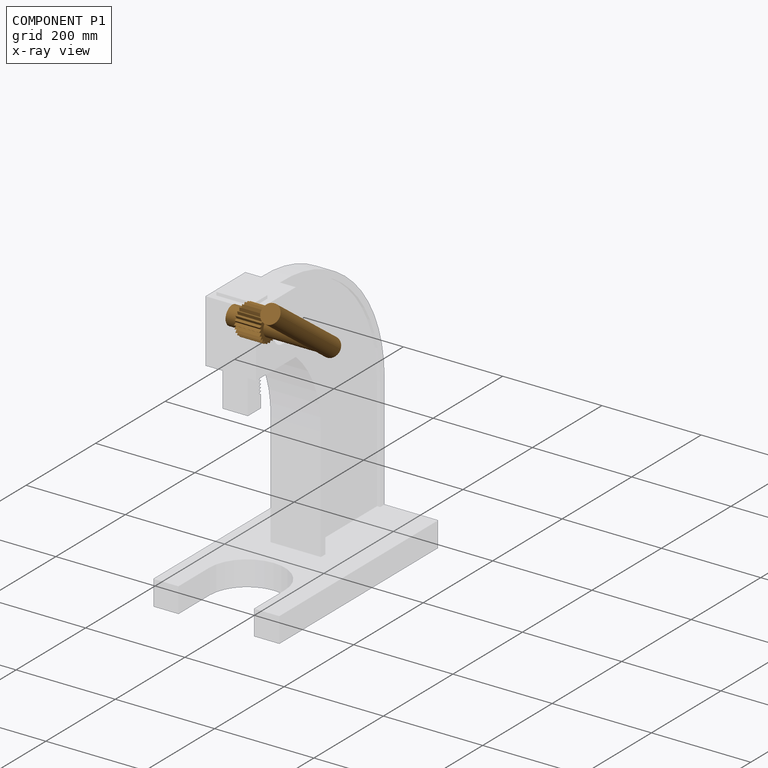
[diagram: component P1 — x-ray view]
COMPONENT P1 — geometry summary (no construction recipe available for this part):
  bounding box: 197.8 x 196.9 x 156.5 mm
  B-rep topology: 1 solid, 80 faces, 456 edges
  volume: 497397 mm^3 (8% of its bounding box)
Held by: REVOLUTE mate "Revolute 1" to P2.
PROVENANCE & LICENSES
Assembly (occurrences, transforms, mates, per-part STEP geometry): AutoMate dataset, Zenodo record 7776208, CC0.
Construction recipes: CADFS (HuggingFace VladPyatov/CADFS, CC-BY-4.0, layered over the ABC dataset), FeatureScript reconstruction programs keyed by ABC model id.
Join: ABC meta listings map ABC model id -> Onshape documentId; within a shared document, parts are matched by geometric signature (bounding-box dims + volume at 0.1% relative tolerance, exact B-rep face/solid counts).
Verification: 1 of this assembly's 3 components carries a recipe attachment, and every attachment is mesh-verified: the CADFS STEP and the AutoMate member STEP were compared as meshes in their shared local frame (symmetric sampled-point-to-mesh distance); worst across the 1 attachment: below the mesh-comparison resolution (tessellation chordal tolerance ~0.339 mm) on a 226 mm part.
Renders: orthographic iso camera (az 35 / el 25); the floor grid conveys scale (grid pitch printed in each image; no ruler). In the exploded view each component is displaced by its stored offset vector: the offsets alone carry the explosion direction (mate normal/axis signs are not orientation cues and do not encode it), and separation distances are assigned per mate-chain, not proportionally to assembly-order depth.
